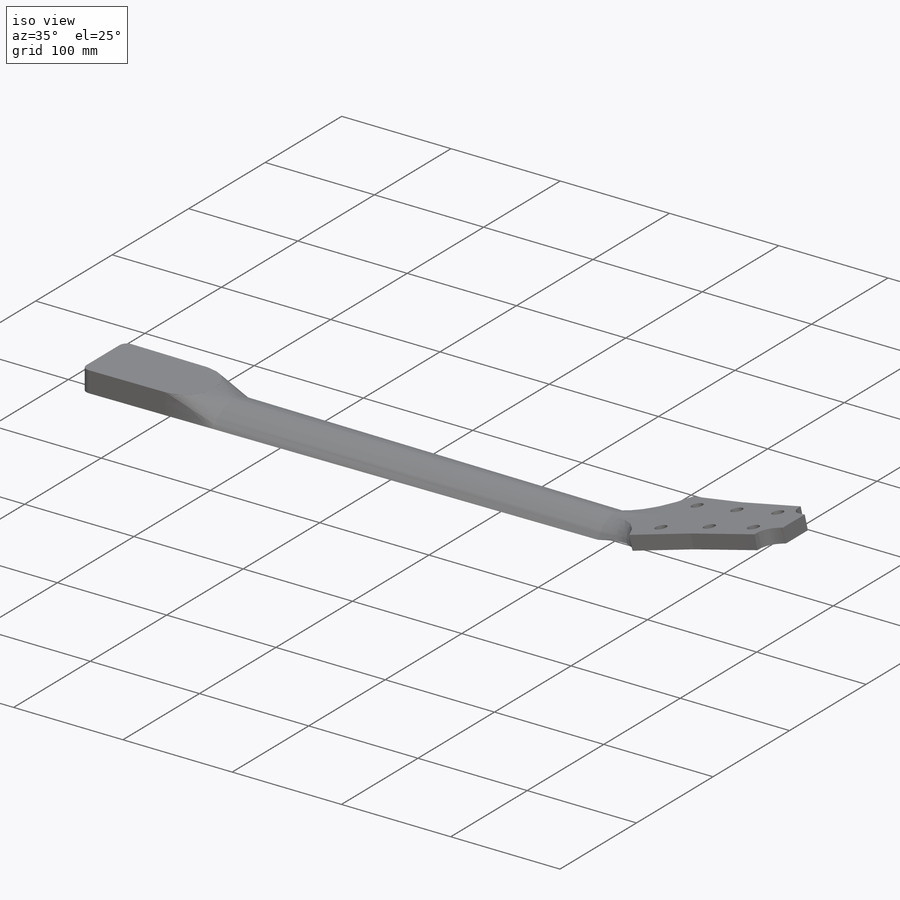
[diagram: iso view]
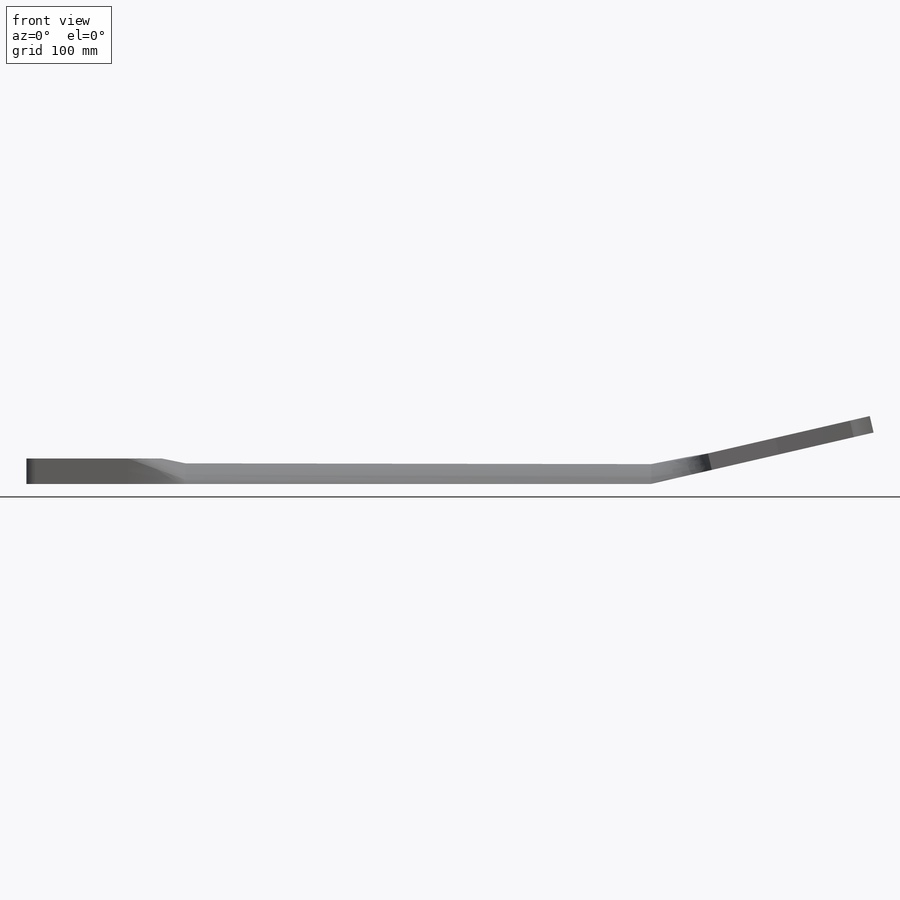
[diagram: front view]
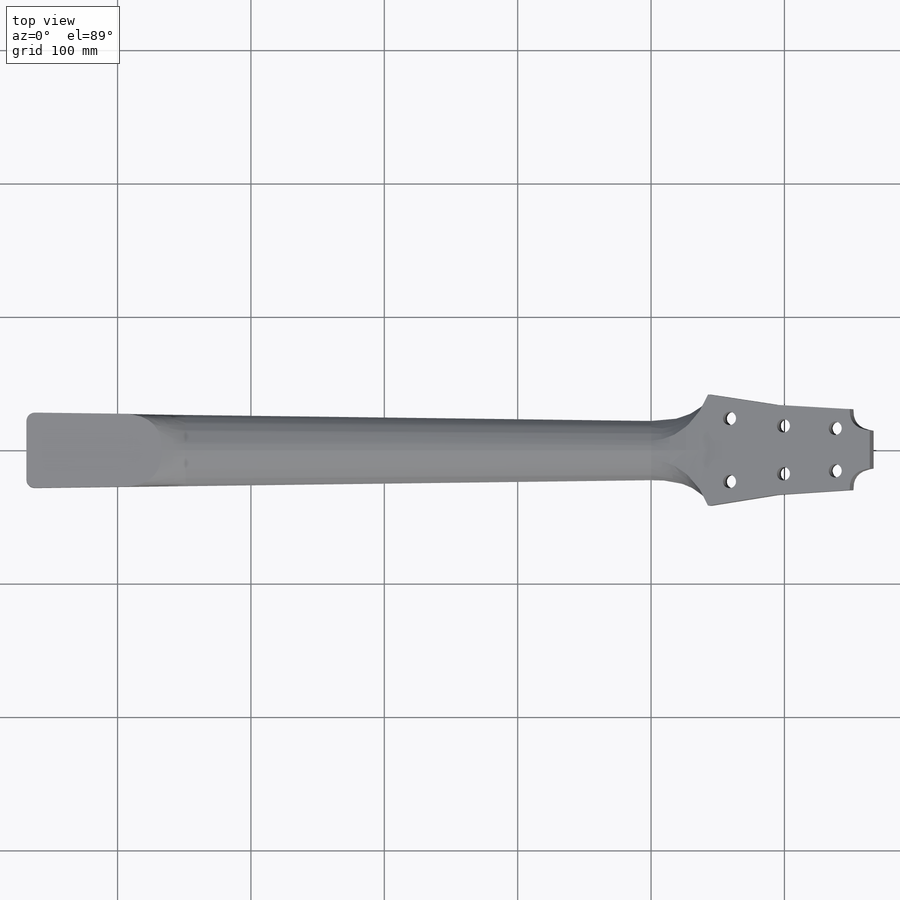
[diagram: top view]
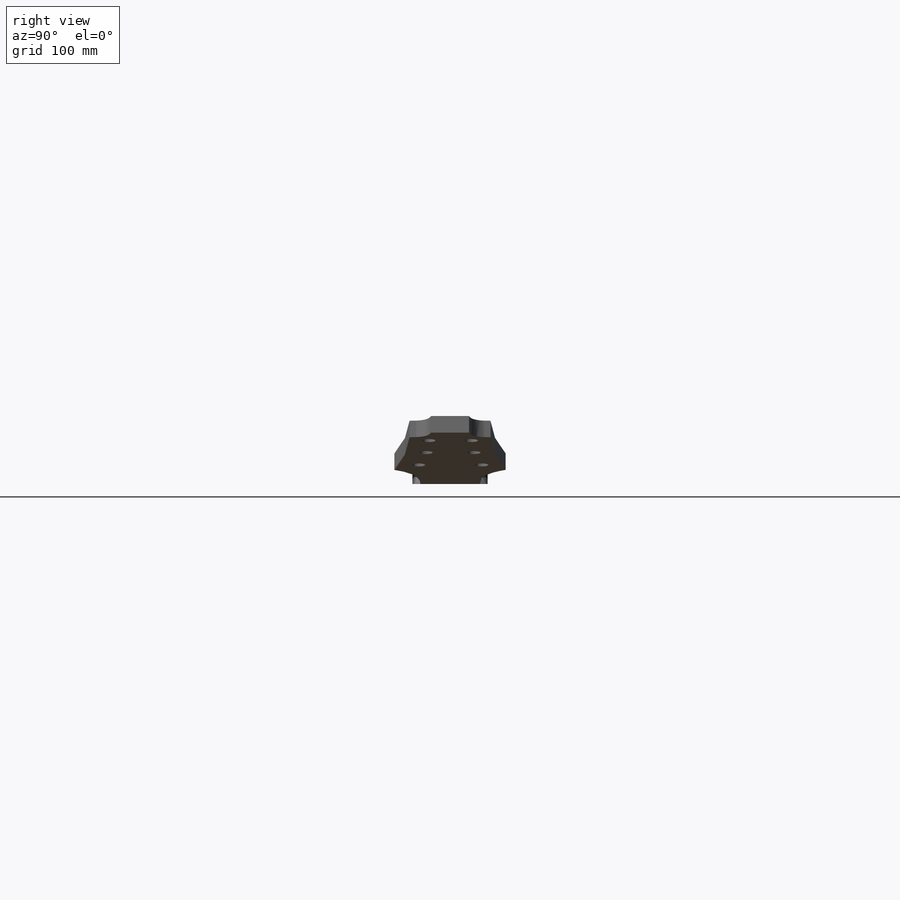
[diagram: right view]
SOLIDWORKS PART (.sldprt)
format: sldprt  version: not decoded by parser v0  size: 706,048 bytes
history: native  units: mm
features: sketch x15, extrude x2, plane x2, material x1, cut_extrude x1 (+15 scaffold rows collapsed)
feature tree (36):
  scaffold x15  (default folders/planes/origin — collapsed)
  material  "Material <not specified>"
  sketch  "Sketch1"  dims[c1.D6=6.35mm c1.D1=468.3125mm c1.D2=56.4896mm c1.D3=44.45mm c1.D4=76.2mm c1.D5=25.4mm c2.D6=55.88mm c2.D7=43.18mm]
  extrude  "Extrude6"  Depth=19.05mm
  sketch  "Sketch2"
  sketch  "Sketch3"
  sketch  "Sketch4"
  sketch  "3DSketch1"
  sketch  "Sketch5"
  sketch  "3DSketch2"
  sketch  "3DSketch3"  dims[c1.D1=~21.584678mm c2.D1=13.0deg]
  plane  "Peghead Plane"
  sketch  "Sketch6"  dims[D1=~85.05419mm]
  plane  "Plane2"  Offset=12.7mm
  sketch  "Sketch8"
  sketch  "3DSketch4"
  extrude  "Extrude7"  Depth=12.7mm
  sketch  "3DSketch5"
  sketch  "3DSketch6"
  sketch  "Sketch8<5>"
  sketch  "Sketch9"
  cut_extrude  "Extrude8"  Depth=12.7mm
decode coverage: 6 of 18 modeling features carry decoded parameters
note: ~ marks probable driven/reference dimensions
note: suppression state not decoded; provenance and decode notes live in map.json
